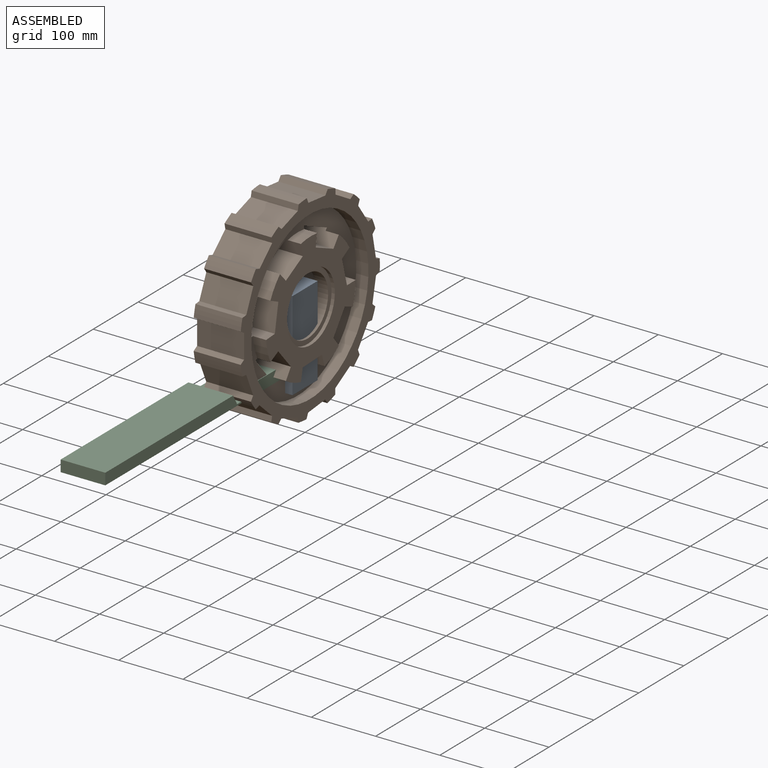
[diagram: assembled view]
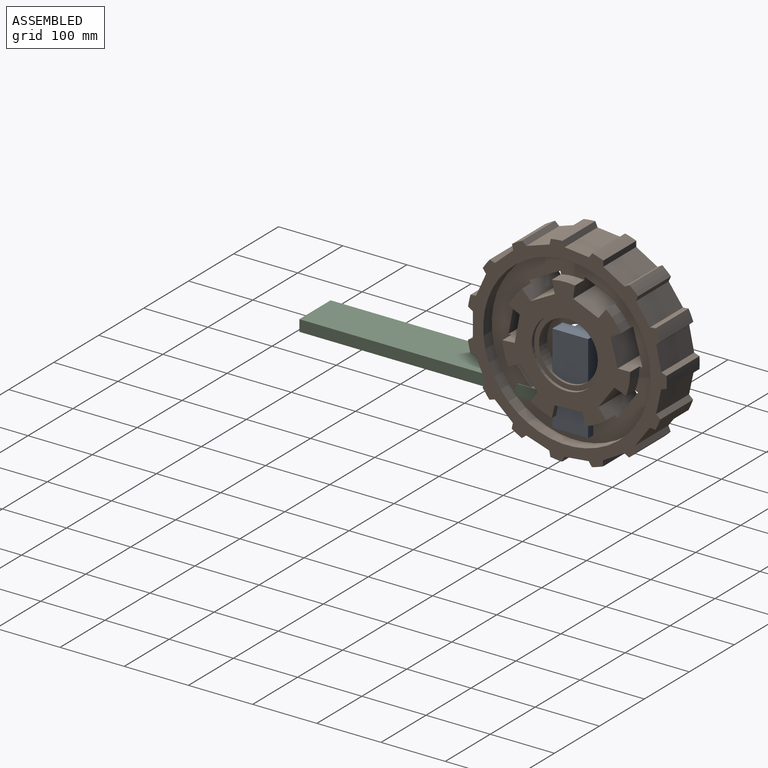
[diagram: assembled view, second angle]
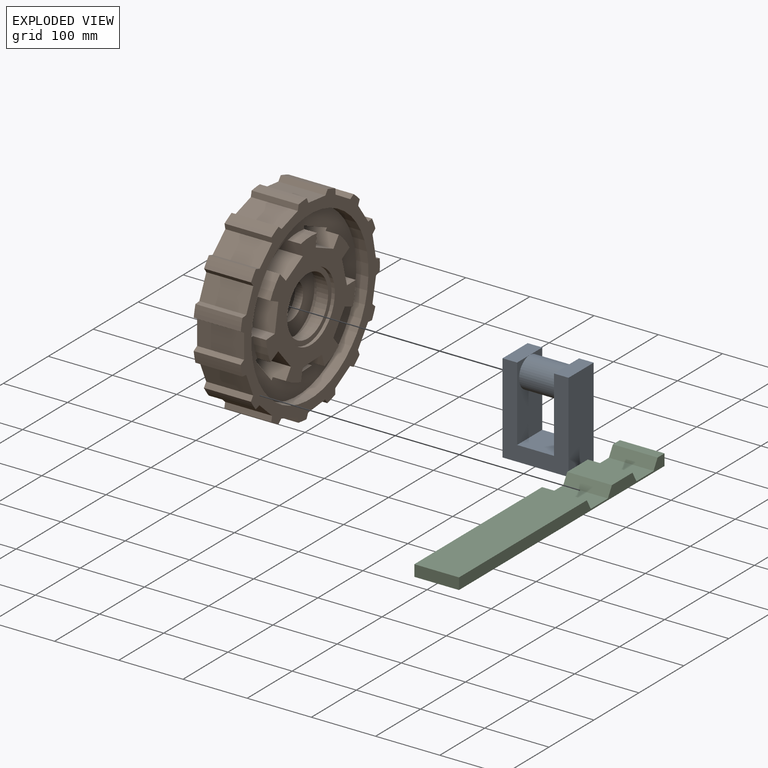
[diagram: exploded view]
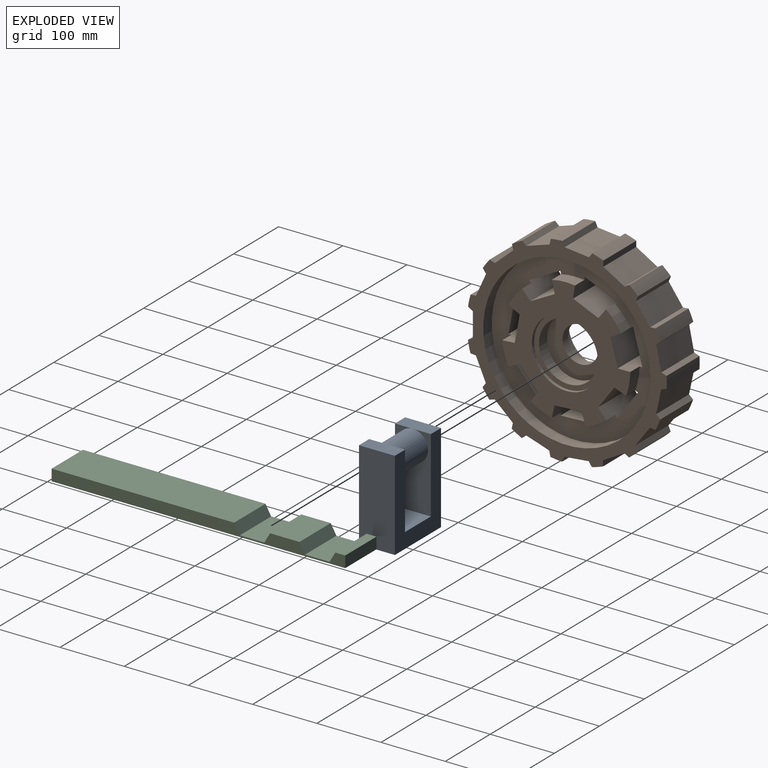
[diagram: exploded view, second angle]
ASSEMBLY  parts=3 mates=2
PART A: 11 faces, bbox 102.8x55.9x139.6 mm
  f0: plane 55.88x22.68mm, normal (0,0,1), area 1267.5mm2, adj f1,f7,f8,f9
  f1: plane 139.61x55.88mm, normal (-1,0,0), area 7801.5mm2, adj f0,f2,f8,f9
  f2: plane 102.78x55.88mm, normal (0,0,-1), area 5743.3mm2, adj f1,f3,f8,f9
  f3: plane 139.61x55.88mm, normal (1,0,0), area 7801.5mm2, adj f2,f4,f8,f9
  f4: plane 55.88x22.68mm, normal (0,0,1), area 1267.5mm2, adj f3,f5,f8,f9
  f5: plane 115.97x55.88mm, normal (-1,0,0), area 4724.4mm2, adj f4,f6,f8,f9,f10
  f6: plane 57.42x55.88mm, normal (0,0,1), area 3208.4mm2, adj f5,f7,f8,f9
  f7: plane 115.97x55.88mm, normal (1,0,0), area 4724.4mm2, adj f0,f6,f8,f9,f10
  f8: plane 139.61x102.78mm, normal (0,-1,0), area 7690.7mm2, adj f0,f1,f2,f3,f4,f5,f6,f7
  f9: plane 139.61x102.78mm, normal (0,1,0), area 7690.7mm2, adj f0,f1,f2,f3,f4,f5,f6,f7
  f10: cylinder r=23.64mm len=57.42mm, axis (-1,0,0), area 8528.9mm2, adj f5,f7
PART B: 123 faces, bbox 76.2x311x309.5 mm
  f0: cylinder r=99.79mm len=32.62mm, axis (-1,0,0), area 748mm2, adj f4,f109,f111,f120
  f1: cylinder r=99.79mm len=32.62mm, axis (-1,0,0), area 748mm2, adj f4,f104,f106,f120
  f2: plane 76.2x21.96mm, normal (0,0.41,0.91), area 1642.6mm2, adj f3,f5,f6,f7,f104,f106,f109,f111
  f3: plane 76.2x33.49mm, normal (0,-0.78,0.62), area 3264mm2, adj f2,f4,f104,f111
  f4: plane 76.2x19.23mm, normal (0,-0.8,-0.6), area 1642.6mm2, adj f0,f1,f3,f5,f104,f106,f109,f111
  f5: plane 42.89x35.1mm, normal (0,0.78,-0.62), area 1925.6mm2, adj f2,f4,f106,f109
  f6: cylinder r=99.79mm len=35.29mm, axis (-1,0,0), area 748mm2, adj f2,f10,f109,f111
  f7: cylinder r=99.79mm len=35.29mm, axis (-1,0,0), area 748mm2, adj f2,f10,f104,f106
  f8: plane 76.2x21.37mm, normal (0,-0.46,0.89), area 1642.6mm2, adj f9,f11,f12,f13,f104,f106,f109,f111
  f9: plane 76.2x41.76mm, normal (0,-0.97,-0.22), area 3264mm2, adj f8,f10,f104,f111
  f10: plane 76.2x24.05mm, normal (0,-0.03,-1), area 1642.6mm2, adj f6,f7,f9,f11,f104,f106,f109,f111
  f11: plane 53.48x35.1mm, normal (0,0.97,0.22), area 1925.6mm2, adj f8,f10,f106,f109
  f12: cylinder r=99.79mm len=28.3mm, axis (-1,0,0), area 748mm2, adj f8,f16,f109,f111
  f13: cylinder r=99.79mm len=28.3mm, axis (-1,0,0), area 748mm2, adj f8,f16,f104,f106
  f14: plane 76.2x23.6mm, normal (0,-0.98,0.19), area 1642.6mm2, adj f15,f17,f18,f19,f104,f106,f109,f111
  f15: plane 76.2x38.59mm, normal (0,-0.43,-0.9), area 3264mm2, adj f14,f16,f104,f111
  f16: plane 76.2x18.38mm, normal (0,0.76,-0.65), area 1642.6mm2, adj f12,f13,f15,f17,f104,f106,f109,f111
  f17: plane 49.43x35.1mm, normal (0,0.43,0.9), area 1925.6mm2, adj f14,f16,f106,f109
  f18: cylinder r=99.79mm len=36.2mm, axis (-1,0,0), area 748mm2, adj f14,f22,f109,f111
  f19: cylinder r=99.79mm len=36.2mm, axis (-1,0,0), area 748mm2, adj f14,f22,f104,f106
  f20: plane 76.2x18.38mm, normal (0,-0.76,-0.65), area 1642.6mm2, adj f21,f23,f24,f25,f104,f106,f109,f111
  f21: plane 76.2x38.59mm, normal (0,0.43,-0.9), area 3264mm2, adj f20,f22,f104,f111
  f22: plane 76.2x23.6mm, normal (0,0.98,0.19), area 1642.6mm2, adj f18,f19,f21,f23,f104,f106,f109,f111
  f23: plane 49.43x35.1mm, normal (0,-0.43,0.9), area 1925.6mm2, adj f20,f22,f106,f109
  f24: cylinder r=99.79mm len=28.3mm, axis (-1,0,0), area 748mm2, adj f20,f28,f109,f111
  f25: cylinder r=99.79mm len=28.3mm, axis (-1,0,0), area 748mm2, adj f20,f28,f104,f106
  f26: plane 76.2x24.05mm, normal (0,0.03,-1), area 1642.6mm2, adj f27,f29,f30,f31,f104,f106,f109,f111
  f27: plane 76.2x41.76mm, normal (0,0.97,-0.22), area 3264mm2, adj f26,f28,f104,f111
  f28: plane 76.2x21.37mm, normal (0,0.46,0.89), area 1642.6mm2, adj f24,f25,f27,f29,f104,f106,f109,f111
  f29: plane 53.48x35.1mm, normal (0,-0.97,0.22), area 1925.6mm2, adj f26,f28,f106,f109
  f30: cylinder r=99.79mm len=35.29mm, axis (-1,0,0), area 748mm2, adj f26,f34,f109,f111
  f31: cylinder r=99.79mm len=35.29mm, axis (-1,0,0), area 748mm2, adj f26,f34,f104,f106
  f32: plane 76.2x19.23mm, normal (0,0.8,-0.6), area 1642.6mm2, adj f33,f35,f104,f105,f106,f109,f110,f111
  f33: plane 76.2x33.49mm, normal (0,0.78,0.62), area 3264mm2, adj f32,f34,f104,f111
  f34: plane 76.2x21.96mm, normal (0,-0.41,0.91), area 1642.6mm2, adj f30,f31,f33,f35,f104,f106,f109,f111
  f35: plane 42.89x35.1mm, normal (0,-0.78,-0.62), area 1925.6mm2, adj f32,f34,f106,f109
  f36: cylinder r=155.65mm len=73.2mm, axis (-1,0,0), area 1335.3mm2, adj f39,f92,f94,f116
  f37: plane 73.2x7.02mm, normal (0,0.59,0.81), area 635.4mm2, adj f38,f40,f92,f94
  f38: plane 73.2x34.81mm, normal (0,-0.41,0.91), area 2789mm2, adj f37,f39,f92,f94
  f39: plane 73.2x8.63mm, normal (0,-0.99,0.1), area 635.4mm2, adj f36,f38,f92,f94
  f40: cylinder r=155.65mm len=73.2mm, axis (-1,0,0), area 1335.3mm2, adj f37,f43,f92,f94
  f41: plane 73.2x8.49mm, normal (0,0.21,0.98), area 635.4mm2, adj f42,f44,f92,f94
  f42: plane 73.2x28.31mm, normal (0,-0.74,0.67), area 2789mm2, adj f41,f43,f92,f94
  f43: plane 73.2x8.26mm, normal (0,-0.95,-0.31), area 635.4mm2, adj f40,f42,f92,f94
  f44: cylinder r=155.65mm len=73.2mm, axis (-1,0,0), area 1335.3mm2, adj f41,f47,f92,f94
  f45: plane 73.2x8.49mm, normal (0,-0.21,0.98), area 635.4mm2, adj f46,f48,f92,f94
  f46: plane 73.2x36.24mm, normal (0,-0.95,0.31), area 2789mm2, adj f45,f47,f92,f94
  f47: plane 73.2x6.45mm, normal (0,-0.74,-0.67), area 635.4mm2, adj f44,f46,f92,f94
  f48: cylinder r=155.65mm len=73.2mm, axis (-1,0,0), area 1335.3mm2, adj f45,f51,f92,f94
  f49: plane 73.2x7.02mm, normal (0,-0.59,0.81), area 635.4mm2, adj f50,f52,f92,f94
  f50: plane 73.2x37.89mm, normal (0,-0.99,-0.1), area 2789mm2, adj f49,f51,f92,f94
  f51: plane 73.2x7.93mm, normal (0,-0.41,-0.91), area 635.4mm2, adj f48,f50,f92,f94
  f52: cylinder r=155.65mm len=73.2mm, axis (-1,0,0), area 1335.3mm2, adj f49,f55,f92,f94
  f53: plane 73.2x7.52mm, normal (0,-0.87,0.5), area 635.4mm2, adj f54,f56,f92,f94
  f54: plane 73.2x33mm, normal (0,-0.87,-0.5), area 2789mm2, adj f53,f55,f92,f94
  f55: plane 73.2x8.68mm, normal (0,0,-1), area 635.4mm2, adj f52,f54,f92,f94
  f56: cylinder r=155.65mm len=73.2mm, axis (-1,0,0), area 1335.3mm2, adj f53,f59,f92,f94
  f57: plane 73.2x8.63mm, normal (0,-0.99,0.1), area 635.4mm2, adj f58,f60,f92,f94
  f58: plane 73.2x30.82mm, normal (0,-0.59,-0.81), area 2789mm2, adj f57,f59,f92,f94
  f59: plane 73.2x7.93mm, normal (0,0.41,-0.91), area 635.4mm2, adj f56,f58,f92,f94
  f60: cylinder r=155.65mm len=73.2mm, axis (-1,0,0), area 1335.3mm2, adj f57,f63,f92,f94
  f61: plane 73.2x8.26mm, normal (0,-0.95,-0.31), area 635.4mm2, adj f62,f64,f92,f94
  f62: plane 73.2x37.27mm, normal (0,-0.21,-0.98), area 2789mm2, adj f61,f63,f92,f94
  f63: plane 73.2x6.45mm, normal (0,0.74,-0.67), area 635.4mm2, adj f60,f62,f92,f94
  f64: cylinder r=155.65mm len=73.2mm, axis (-1,0,0), area 1335.3mm2, adj f61,f67,f92,f94
  f65: plane 73.2x6.45mm, normal (0,-0.74,-0.67), area 635.4mm2, adj f66,f68,f92,f94
  f66: plane 73.2x37.27mm, normal (0,0.21,-0.98), area 2789mm2, adj f65,f67,f92,f94
  f67: plane 73.2x8.26mm, normal (0,0.95,-0.31), area 635.4mm2, adj f64,f66,f92,f94
  f68: cylinder r=155.65mm len=73.2mm, axis (-1,0,0), area 1335.3mm2, adj f65,f71,f92,f94
  f69: plane 73.2x7.93mm, normal (0,-0.41,-0.91), area 635.4mm2, adj f70,f72,f92,f94
  f70: plane 73.2x30.82mm, normal (0,0.59,-0.81), area 2789mm2, adj f69,f71,f92,f94
  f71: plane 73.2x8.63mm, normal (0,0.99,0.1), area 635.4mm2, adj f68,f70,f92,f94
  f72: cylinder r=155.65mm len=73.2mm, axis (-1,0,0), area 1335.3mm2, adj f69,f75,f92,f94
  f73: plane 73.2x8.68mm, normal (0,0,-1), area 635.4mm2, adj f74,f76,f92,f94
  f74: plane 73.2x33mm, normal (0,0.87,-0.5), area 2789mm2, adj f73,f75,f92,f94
  f75: plane 73.2x7.52mm, normal (0,0.87,0.5), area 635.4mm2, adj f72,f74,f92,f94
  f76: cylinder r=155.65mm len=73.2mm, axis (-1,0,0), area 1335.3mm2, adj f73,f79,f92,f94
  f77: plane 73.2x7.93mm, normal (0,0.41,-0.91), area 635.4mm2, adj f78,f80,f92,f94
  f78: plane 73.2x37.89mm, normal (0,0.99,-0.1), area 2789mm2, adj f77,f79,f92,f94
  f79: plane 73.2x7.02mm, normal (0,0.59,0.81), area 635.4mm2, adj f76,f78,f92,f94
  f80: cylinder r=155.65mm len=73.2mm, axis (-1,0,0), area 1335.3mm2, adj f77,f83,f92,f94
  f81: plane 73.2x6.45mm, normal (0,0.74,-0.67), area 635.4mm2, adj f82,f84,f92,f94
  f82: plane 73.2x36.24mm, normal (0,0.95,0.31), area 2789mm2, adj f81,f83,f92,f94
  f83: plane 73.2x8.49mm, normal (0,0.21,0.98), area 635.4mm2, adj f80,f82,f92,f94
  f84: cylinder r=155.65mm len=73.2mm, axis (-1,0,0), area 1335.3mm2, adj f81,f87,f92,f94
  f85: plane 73.2x8.26mm, normal (0,0.95,-0.31), area 635.4mm2, adj f86,f88,f92,f94
  f86: plane 73.2x28.31mm, normal (0,0.74,0.67), area 2789mm2, adj f85,f87,f92,f94
  f87: plane 73.2x8.49mm, normal (0,-0.21,0.98), area 635.4mm2, adj f84,f86,f92,f94
  f88: cylinder r=155.65mm len=73.2mm, axis (-1,0,0), area 1335.3mm2, adj f85,f91,f92,f94
  f89: plane 73.2x8.63mm, normal (0,0.99,0.1), area 635.4mm2, adj f90,f92,f93,f94
  f90: plane 73.2x34.81mm, normal (0,0.41,0.91), area 2789mm2, adj f89,f91,f92,f94
  f91: plane 73.2x7.02mm, normal (0,-0.59,0.81), area 635.4mm2, adj f88,f90,f92,f94
  f92: plane 310.98x309.54mm, normal (1,0,0), area 17200.9mm2, adj f36,f37,f38,f39,f40,f41,f42,f43
  f93: cylinder r=155.65mm len=73.2mm, axis (-1,0,0), area 1335.3mm2, adj f89,f92,f94,f118
  f94: plane 310.98x309.54mm, normal (-1,0,0), area 17200.9mm2, adj f36,f37,f38,f39,f40,f41,f42,f43
  f95: cylinder r=53.34mm len=106.68mm, axis (-1,0,0), area 2979.4mm2, adj f96,f115
  f96: plane 106.68x106.68mm, normal (-1,0,0), area 6485.9mm2, adj f95,f97
  f97: cylinder r=27.94mm len=55.88mm, axis (-1,0,0), area 2229.5mm2, adj f96,f98
  f98: plane 106.68x106.68mm, normal (1,0,0), area 6485.9mm2, adj f97,f99
  f99: cylinder r=53.34mm len=106.68mm, axis (-1,0,0), area 2979.4mm2, adj f98,f100
  f100: plane 106.68x106.68mm, normal (-1,0,0), area 2361.8mm2, adj f99,f101
  f101: cylinder r=45.75mm len=91.51mm, axis (-1,0,0), area 5111.3mm2, adj f100,f102
  f102: plane 106.68x106.68mm, normal (1,0,0), area 2361.8mm2, adj f101,f103
  f103: cylinder r=53.34mm len=106.68mm, axis (-1,0,0), area 1702.5mm2, adj f102,f104
  f104: plane 199.4x196.05mm, normal (1,0,0), area 15200.8mm2, adj f1,f2,f3,f4,f7,f8,f9,f10
  f105: cylinder r=99.79mm len=32.62mm, axis (-1,0,0), area 748mm2, adj f32,f104,f106,f122
  f106: plane 260.51x260.51mm, normal (1,0,0), area 21196.5mm2, adj f1,f2,f4,f5,f7,f8,f10,f11
  f107: cylinder r=130.25mm len=260.51mm, axis (-1,0,0), area 15590.8mm2, adj f92,f106
  f108: cylinder r=130.25mm len=260.51mm, axis (-1,0,0), area 15590.8mm2, adj f94,f109
  f109: plane 260.51x260.51mm, normal (-1,0,0), area 21196.5mm2, adj f0,f2,f4,f5,f6,f8,f10,f11
  f110: cylinder r=99.79mm len=32.62mm, axis (-1,0,0), area 748mm2, adj f32,f109,f111,f122
  f111: plane 199.4x196.05mm, normal (-1,0,0), area 15200.8mm2, adj f0,f2,f3,f4,f6,f8,f9,f10
  f112: cylinder r=53.34mm len=106.68mm, axis (-1,0,0), area 1702.5mm2, adj f111,f113
  f113: plane 106.68x106.68mm, normal (-1,0,0), area 2361.8mm2, adj f112,f114
  f114: cylinder r=45.75mm len=91.51mm, axis (-1,0,0), area 5111.3mm2, adj f113,f115
  f115: plane 106.68x106.68mm, normal (1,0,0), area 2361.8mm2, adj f95,f114
  f116: plane 73.2x7.52mm, normal (0,0.87,0.5), area 635.4mm2, adj f36,f92,f94,f117
  f117: plane 73.2x38.1mm, normal (0,0,1), area 2789mm2, adj f92,f94,f116,f118
  f118: plane 73.2x7.52mm, normal (0,-0.87,0.5), area 635.4mm2, adj f92,f93,f94,f117
  f119: plane 54.86x35.1mm, normal (0,0,-1), area 1925.6mm2, adj f106,f109,f120,f122
  f120: plane 76.2x23.3mm, normal (0,0.97,0.25), area 1642.6mm2, adj f0,f1,f104,f106,f109,f111,f119,f121
  f121: plane 76.2x42.83mm, normal (0,0,1), area 3264mm2, adj f104,f111,f120,f122
  f122: plane 76.2x23.3mm, normal (0,-0.97,0.25), area 1642.6mm2, adj f104,f105,f106,f109,f110,f111,f119,f121
PART C: 14 faces, bbox 69.6x457.2x17.8 mm
  f0: plane 284.24x69.6mm, normal (0,0,1), area 19782.2mm2, adj f1,f6,f12,f13
  f1: plane 69.6x15.41mm, normal (0,0.87,0.5), area 1238.4mm2, adj f0,f3,f12,f13
  f2: plane 69.6x15.41mm, normal (0,-0.87,0.5), area 1238.4mm2, adj f3,f5,f12,f13
  f3: plane 69.6x38.1mm, normal (0,0,1), area 2651.6mm2, adj f1,f2,f12,f13
  f4: plane 69.6x15.41mm, normal (0,0.87,0.5), area 1238.4mm2, adj f5,f11,f12,f13
  f5: plane 69.6x45.71mm, normal (0,0,1), area 3180.9mm2, adj f2,f4,f12,f13
  f6: plane 69.6x17.78mm, normal (0,-1,0), area 1237.4mm2, adj f0,f7,f12,f13
  f7: plane 457.2x69.6mm, normal (0,0,-1), area 31819.3mm2, adj f6,f8,f12,f13
  f8: plane 69.6x17.78mm, normal (0,1,0), area 1237.4mm2, adj f7,f9,f12,f13
  f9: plane 69.6x15.46mm, normal (0,0,1), area 1076.1mm2, adj f8,f10,f12,f13
  f10: plane 69.6x15.41mm, normal (0,-0.87,0.5), area 1238.4mm2, adj f9,f11,f12,f13
  f11: plane 69.6x38.1mm, normal (0,0,1), area 2651.6mm2, adj f4,f10,f12,f13
  f12: plane 457.2x17.78mm, normal (-1,0,0), area 6680.5mm2, adj f0,f1,f2,f3,f4,f5,f6,f7
  f13: plane 457.2x17.78mm, normal (1,0,0), area 6680.5mm2, adj f0,f1,f2,f3,f4,f5,f6,f7
PLACE A t=(-67.62,223.11,-87.72)mm fixed
PLACE B rot(axis=(-1,0,0),126.1deg) t=(-45.26,279.98,-116.12)mm
PLACE C t=(-61.53,22.45,-262.48)mm
MATE revolute B.f0 <-> A.f10  axis (1,0,0) through (-38.91,223.11,-74.63)mm
MATE slider A.f7 <-> C.f12  axis (1,0,0) through (-96.33,251.05,-166.96)mm
